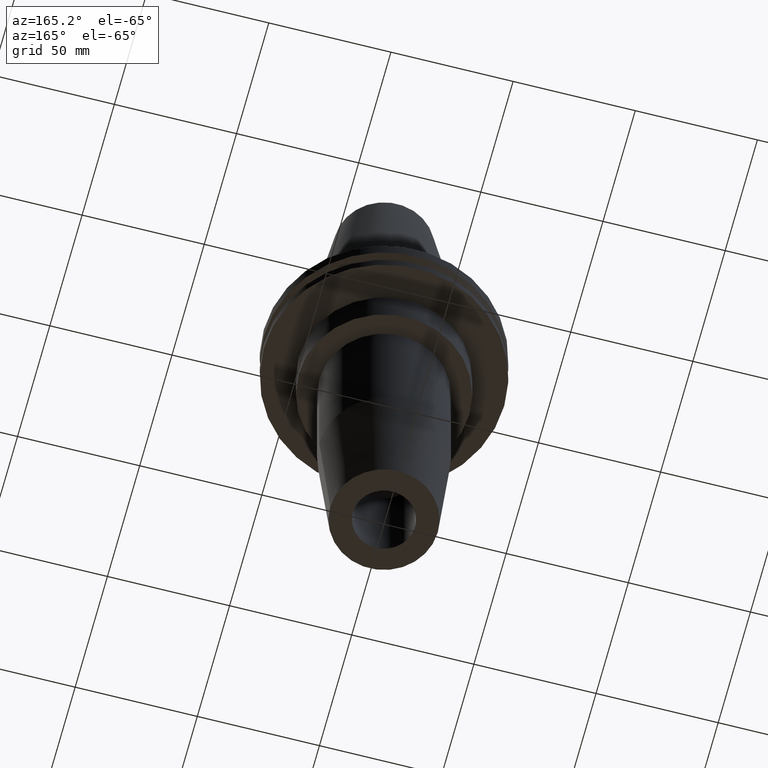
[diagram: clean part render]
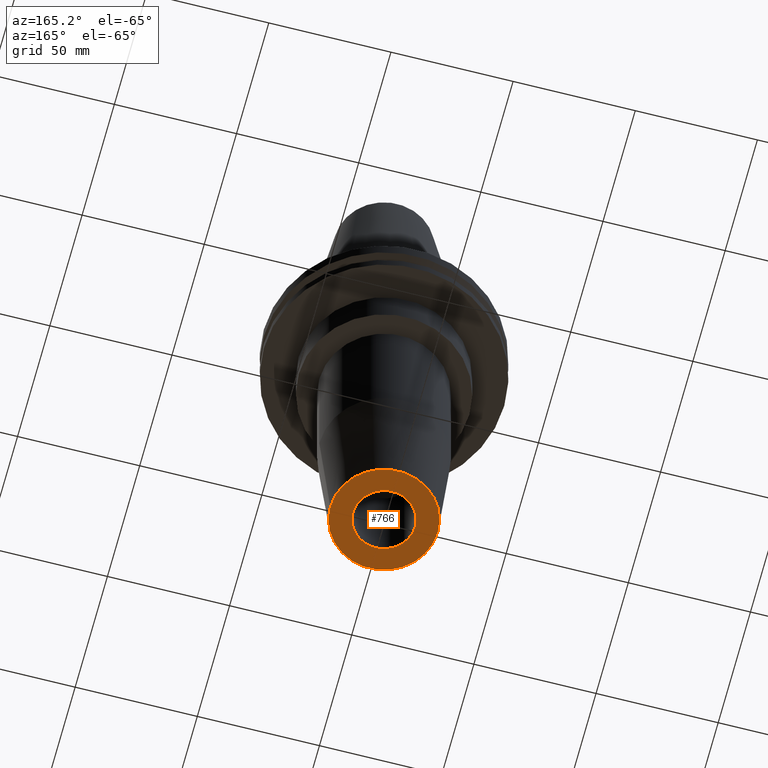
[diagram: same view with one face highlighted and labeled with its STEP entity id]
A machine part, auxiliary view. The second image highlights one B-rep face of the part: STEP entity #766.
In plain terms, the highlighted planar face has unit normal (0, -0, 1).
Its self-contained STEP definition (entity closure, byte-faithful):
#62 = VERTEX_POINT ( 'NONE', #472 ) ;
#111 = CARTESIAN_POINT ( 'NONE',  ( 0.000000000000000000, 0.000000000000000000, -152.4000000000000057 ) ) ;
#126 = EDGE_LOOP ( 'NONE', ( #252, #782 ) ) ;
#141 = CIRCLE ( 'NONE', #627, 22.00000000000000000 ) ;
#144 = FACE_OUTER_BOUND ( 'NONE', #699, .T. ) ;
#147 = FACE_BOUND ( 'NONE', #126, .T. ) ;
#149 = CARTESIAN_POINT ( 'NONE',  ( 12.70000000000000639, 0.000000000000000000, -152.4000000000000057 ) ) ;
#154 = CARTESIAN_POINT ( 'NONE',  ( 0.000000000000000000, 0.000000000000000000, -152.4000000000000057 ) ) ;
#160 = DIRECTION ( 'NONE',  ( 1.000000000000000000, 0.000000000000000000, 0.000000000000000000 ) ) ;
#172 = AXIS2_PLACEMENT_3D ( 'NONE', #749, #738, #160 ) ;
#190 = ORIENTED_EDGE ( 'NONE', *, *, #364, .F. ) ;
#221 = CARTESIAN_POINT ( 'NONE',  ( 0.000000000000000000, 22.00000000000000000, -152.4000000000000057 ) ) ;
#252 = ORIENTED_EDGE ( 'NONE', *, *, #634, .T. ) ;
#256 = DIRECTION ( 'NONE',  ( 1.000000000000000000, 0.000000000000000000, 0.000000000000000000 ) ) ;
#266 = DIRECTION ( 'NONE',  ( 1.000000000000000000, 0.000000000000000000, 0.000000000000000000 ) ) ;
#270 = CIRCLE ( 'NONE', #812, 12.70000000000000639 ) ;
#304 = AXIS2_PLACEMENT_3D ( 'NONE', #834, #586, #256 ) ;
#325 = VERTEX_POINT ( 'NONE', #645 ) ;
#364 = EDGE_CURVE ( 'NONE', #62, #410, #554, .T. ) ;
#381 = EDGE_CURVE ( 'NONE', #410, #62, #141, .T. ) ;
#406 = CARTESIAN_POINT ( 'NONE',  ( -22.00000000000000000, 2.969768487932331287E-15, -152.4000000000000057 ) ) ;
#410 = VERTEX_POINT ( 'NONE', #406 ) ;
#418 = DIRECTION ( 'NONE',  ( 0.000000000000000000, -0.000000000000000000, 1.000000000000000000 ) ) ;
#427 = ORIENTED_EDGE ( 'NONE', *, *, #381, .F. ) ;
#472 = CARTESIAN_POINT ( 'NONE',  ( 22.00000000000000000, 0.000000000000000000, -152.4000000000000057 ) ) ;
#513 = DIRECTION ( 'NONE',  ( -0.000000000000000000, -0.000000000000000000, 1.000000000000000000 ) ) ;
#540 = CIRCLE ( 'NONE', #172, 12.70000000000000639 ) ;
#554 = CIRCLE ( 'NONE', #304, 22.00000000000000000 ) ;
#586 = DIRECTION ( 'NONE',  ( -0.000000000000000000, -0.000000000000000000, 1.000000000000000000 ) ) ;
#623 = VERTEX_POINT ( 'NONE', #149 ) ;
#627 = AXIS2_PLACEMENT_3D ( 'NONE', #111, #513, #266 ) ;
#634 = EDGE_CURVE ( 'NONE', #623, #325, #540, .T. ) ;
#645 = CARTESIAN_POINT ( 'NONE',  ( -12.70000000000000639, 1.555301434917140208E-15, -152.4000000000000057 ) ) ;
#659 = AXIS2_PLACEMENT_3D ( 'NONE', #221, #418, #678 ) ;
#678 = DIRECTION ( 'NONE',  ( 1.000000000000000000, 0.000000000000000000, 0.000000000000000000 ) ) ;
#689 = DIRECTION ( 'NONE',  ( -0.000000000000000000, -0.000000000000000000, 1.000000000000000000 ) ) ;
#699 = EDGE_LOOP ( 'NONE', ( #190, #427 ) ) ;
#738 = DIRECTION ( 'NONE',  ( -0.000000000000000000, -0.000000000000000000, 1.000000000000000000 ) ) ;
#749 = CARTESIAN_POINT ( 'NONE',  ( 0.000000000000000000, 0.000000000000000000, -152.4000000000000057 ) ) ;
#766 = ADVANCED_FACE ( 'NONE', ( #144, #147 ), #808, .F. ) ;
#782 = ORIENTED_EDGE ( 'NONE', *, *, #791, .T. ) ;
#791 = EDGE_CURVE ( 'NONE', #325, #623, #270, .T. ) ;
#808 = PLANE ( 'NONE',  #659 ) ;
#812 = AXIS2_PLACEMENT_3D ( 'NONE', #154, #689, #823 ) ;
#823 = DIRECTION ( 'NONE',  ( 1.000000000000000000, 0.000000000000000000, 0.000000000000000000 ) ) ;
#834 = CARTESIAN_POINT ( 'NONE',  ( 0.000000000000000000, 0.000000000000000000, -152.4000000000000057 ) ) ;